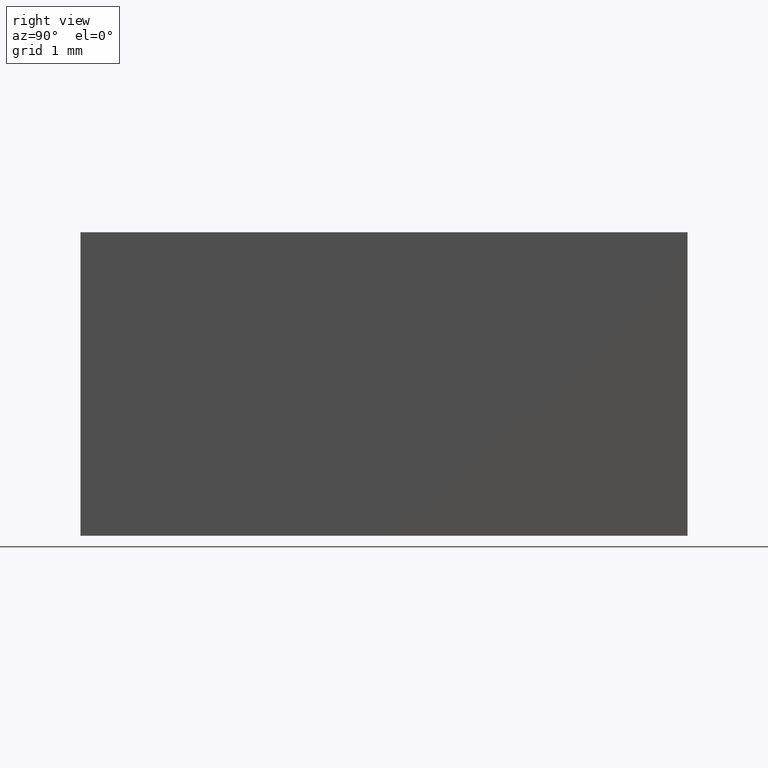
[diagram: clean part render]
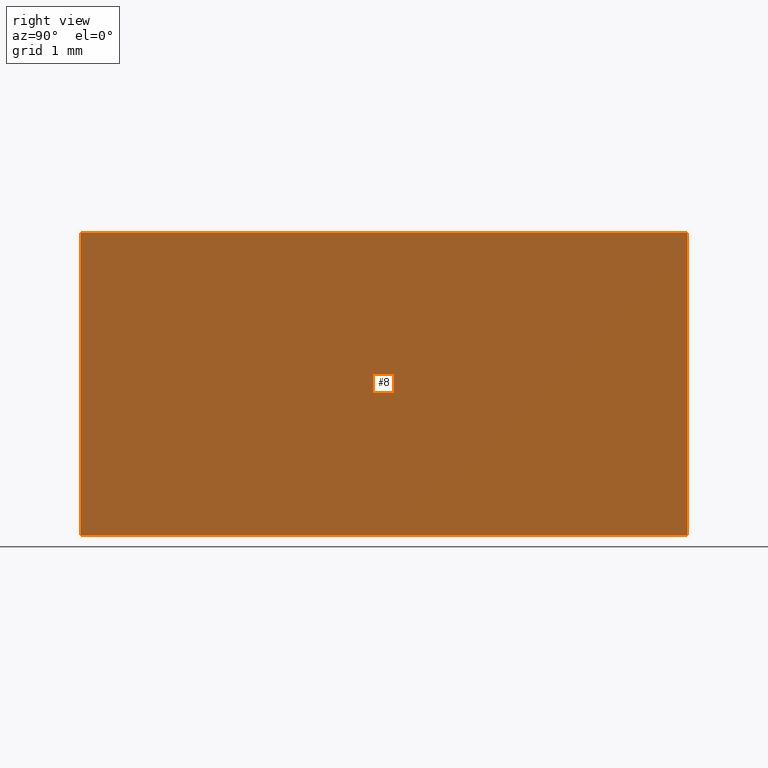
[diagram: same view with one face highlighted and labeled with its STEP entity id]
A machine part, right view. The second image highlights one B-rep face of the part: STEP entity #8.
In plain terms, the highlighted planar face has unit normal (-1, 0, 0).
Its self-contained STEP definition (entity closure, byte-faithful):
#1 = CARTESIAN_POINT ( 'NONE',  ( 0.0000000000000000000, 0.0000000000000000000, 0.0000000000000000000 ) ) ;
#5 = EDGE_CURVE ( 'NONE', #27, #176, #193, .T. ) ;
#8 = ADVANCED_FACE ( 'NONE', ( #106 ), #156, .F. ) ;
#9 = VECTOR ( 'NONE', #148, 1000.000000000000000 ) ;
#23 = VERTEX_POINT ( 'NONE', #136 ) ;
#24 = CARTESIAN_POINT ( 'NONE',  ( 0.0000000000000000000, 8.000000000000000000, 0.0000000000000000000 ) ) ;
#27 = VERTEX_POINT ( 'NONE', #157 ) ;
#47 = ORIENTED_EDGE ( 'NONE', *, *, #5, .T. ) ;
#53 = LINE ( 'NONE', #1, #59 ) ;
#59 = VECTOR ( 'NONE', #168, 1000.000000000000000 ) ;
#69 = ORIENTED_EDGE ( 'NONE', *, *, #197, .F. ) ;
#73 = VERTEX_POINT ( 'NONE', #173 ) ;
#81 = ORIENTED_EDGE ( 'NONE', *, *, #165, .F. ) ;
#82 = VECTOR ( 'NONE', #137, 1000.000000000000000 ) ;
#98 = CARTESIAN_POINT ( 'NONE',  ( 0.0000000000000000000, 8.000000000000000000, 0.0000000000000000000 ) ) ;
#101 = DIRECTION ( 'NONE',  ( -1.000000000000000000, 0.0000000000000000000, 0.0000000000000000000 ) ) ;
#106 = FACE_OUTER_BOUND ( 'NONE', #161, .T. ) ;
#107 = CARTESIAN_POINT ( 'NONE',  ( 0.0000000000000000000, 8.000000000000000000, 0.0000000000000000000 ) ) ;
#123 = ORIENTED_EDGE ( 'NONE', *, *, #180, .T. ) ;
#130 = CARTESIAN_POINT ( 'NONE',  ( 0.0000000000000000000, 8.000000000000000000, 4.000000000000000000 ) ) ;
#131 = VECTOR ( 'NONE', #185, 1000.000000000000000 ) ;
#134 = CARTESIAN_POINT ( 'NONE',  ( 0.0000000000000000000, 0.0000000000000000000, 4.000000000000000000 ) ) ;
#136 = CARTESIAN_POINT ( 'NONE',  ( 0.0000000000000000000, 0.0000000000000000000, 0.0000000000000000000 ) ) ;
#137 = DIRECTION ( 'NONE',  ( -0.0000000000000000000, -1.000000000000000000, -0.0000000000000000000 ) ) ;
#148 = DIRECTION ( 'NONE',  ( -0.0000000000000000000, -1.000000000000000000, -0.0000000000000000000 ) ) ;
#156 = PLANE ( 'NONE',  #163 ) ;
#157 = CARTESIAN_POINT ( 'NONE',  ( 0.0000000000000000000, 8.000000000000000000, 4.000000000000000000 ) ) ;
#161 = EDGE_LOOP ( 'NONE', ( #123, #69, #81, #47 ) ) ;
#163 = AXIS2_PLACEMENT_3D ( 'NONE', #98, #101, #167 ) ;
#165 = EDGE_CURVE ( 'NONE', #27, #73, #189, .T. ) ;
#167 = DIRECTION ( 'NONE',  ( 0.0000000000000000000, 0.0000000000000000000, 1.000000000000000000 ) ) ;
#168 = DIRECTION ( 'NONE',  ( -0.0000000000000000000, -0.0000000000000000000, -1.000000000000000000 ) ) ;
#173 = CARTESIAN_POINT ( 'NONE',  ( 0.0000000000000000000, 8.000000000000000000, 0.0000000000000000000 ) ) ;
#176 = VERTEX_POINT ( 'NONE', #134 ) ;
#180 = EDGE_CURVE ( 'NONE', #176, #23, #53, .T. ) ;
#185 = DIRECTION ( 'NONE',  ( -0.0000000000000000000, -0.0000000000000000000, -1.000000000000000000 ) ) ;
#189 = LINE ( 'NONE', #107, #131 ) ;
#193 = LINE ( 'NONE', #130, #9 ) ;
#196 = LINE ( 'NONE', #24, #82 ) ;
#197 = EDGE_CURVE ( 'NONE', #73, #23, #196, .T. ) ;